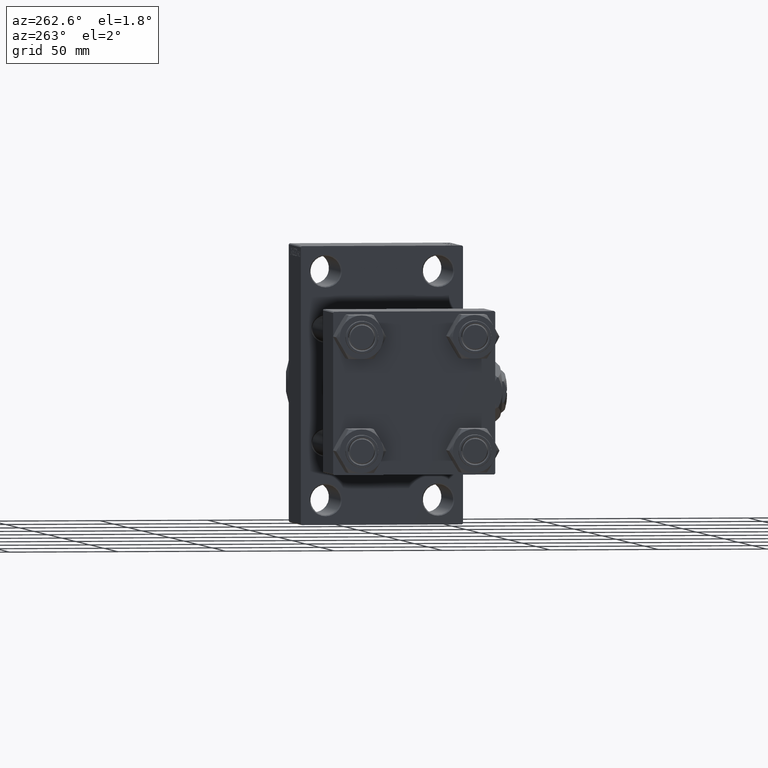
[diagram: clean part render]
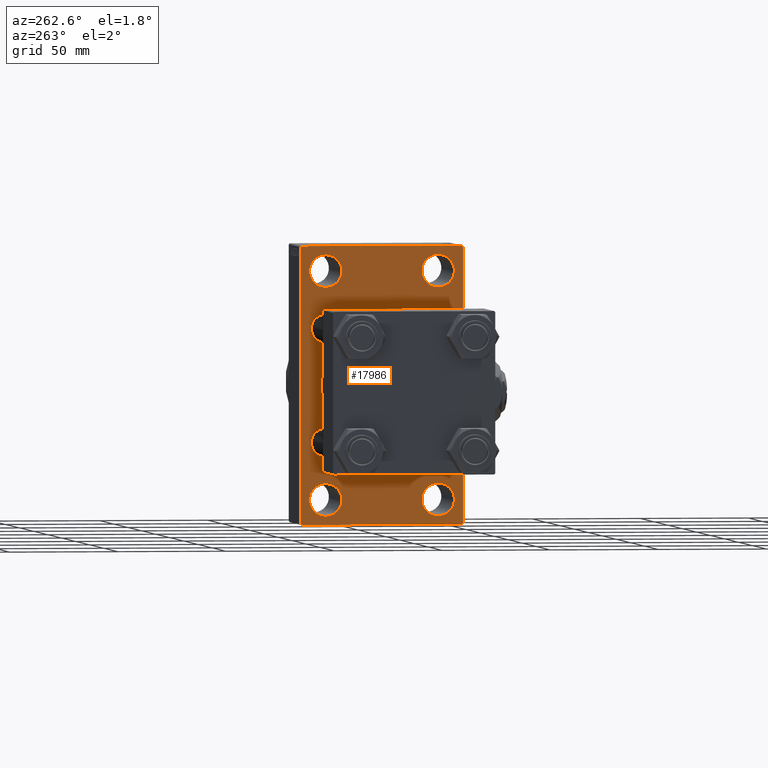
[diagram: same view with one face highlighted and labeled with its STEP entity id]
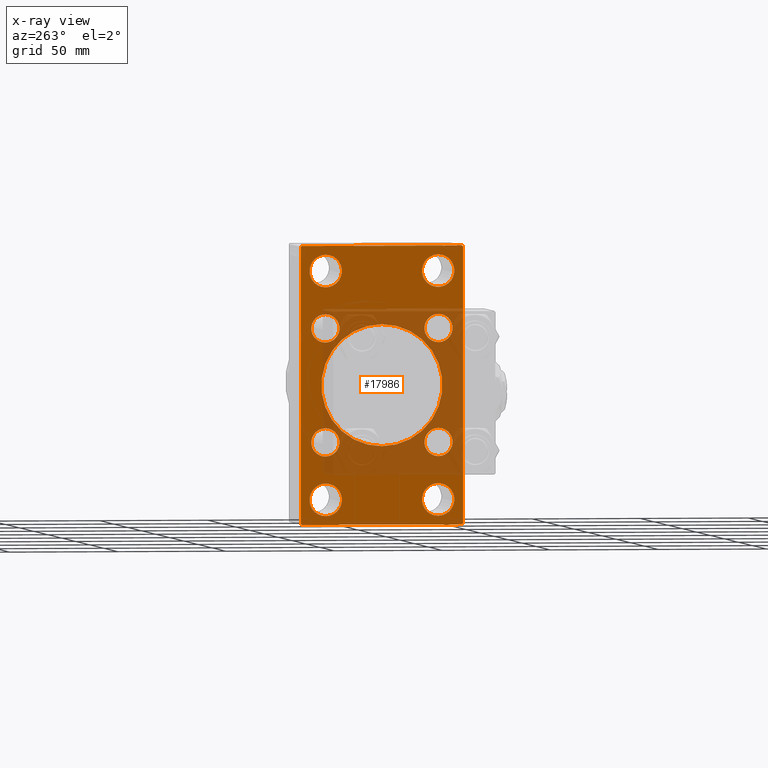
[diagram: x-ray of the same camera — body ghosted, the highlighted face saturated]
A machine part, auxiliary view. The second image highlights one B-rep face of the part: STEP entity #17986.
The next image is the same camera in x-ray: the body ghosted, the highlighted face saturated — about 35% of this face is hidden behind the body in this view.
In plain terms, the highlighted planar face has unit normal (-1, 0, 0).
Its self-contained STEP definition (entity closure, byte-faithful):
#180 = DIRECTION ( 'NONE',  ( -1.000000000000000000, 0.000000000000000000, -0.000000000000000000 ) ) ;
#187 = VERTEX_POINT ( 'NONE', #28447 ) ;
#403 = CARTESIAN_POINT ( 'NONE',  ( 114.9999999999999858, -25.99999999999999645, 45.00000000000002132 ) ) ;
#1037 = CARTESIAN_POINT ( 'NONE',  ( 114.9999999999999858, -25.99999999999999645, -52.49999999999999289 ) ) ;
#1162 = AXIS2_PLACEMENT_3D ( 'NONE', #24169, #27348, #28114 ) ;
#1648 = CIRCLE ( 'NONE', #28593, 28.00000000000000000 ) ;
#1666 = ORIENTED_EDGE ( 'NONE', *, *, #6667, .T. ) ;
#1837 = EDGE_CURVE ( 'NONE', #48486, #30447, #24759, .T. ) ;
#1896 = EDGE_LOOP ( 'NONE', ( #27244, #46014 ) ) ;
#1913 = CARTESIAN_POINT ( 'NONE',  ( 114.9999999999999858, 26.14999999999999858, -19.64999999999999503 ) ) ;
#2016 = AXIS2_PLACEMENT_3D ( 'NONE', #20655, #36711, #7482 ) ;
#2367 = CARTESIAN_POINT ( 'NONE',  ( 114.9999999999999858, 26.14999999999999858, -26.15000000000000213 ) ) ;
#2583 = CIRCLE ( 'NONE', #27852, 6.500000000000008882 ) ;
#3143 = DIRECTION ( 'NONE',  ( 1.000000000000000000, -0.000000000000000000, 0.000000000000000000 ) ) ;
#3400 = VERTEX_POINT ( 'NONE', #10303 ) ;
#3449 = DIRECTION ( 'NONE',  ( 0.000000000000000000, 0.000000000000000000, 1.000000000000000000 ) ) ;
#3491 = EDGE_CURVE ( 'NONE', #7828, #26828, #31116, .T. ) ;
#3513 = VECTOR ( 'NONE', #11861, 1000.000000000000000 ) ;
#3566 = EDGE_CURVE ( 'NONE', #51259, #46283, #51889, .T. ) ;
#4153 = FACE_BOUND ( 'NONE', #49413, .T. ) ;
#4502 = EDGE_CURVE ( 'NONE', #11430, #51189, #41220, .T. ) ;
#4610 = EDGE_CURVE ( 'NONE', #5822, #33616, #1648, .T. ) ;
#4664 = AXIS2_PLACEMENT_3D ( 'NONE', #44139, #25170, #44645 ) ;
#4677 = CIRCLE ( 'NONE', #50134, 6.500000000000008882 ) ;
#4890 = VERTEX_POINT ( 'NONE', #26745 ) ;
#5104 = CARTESIAN_POINT ( 'NONE',  ( 114.9999999999999858, 26.00000000000000000, -45.00000000000001421 ) ) ;
#5818 = VECTOR ( 'NONE', #51297, 1000.000000000000114 ) ;
#5822 = VERTEX_POINT ( 'NONE', #33606 ) ;
#6053 = DIRECTION ( 'NONE',  ( 0.000000000000000000, 0.000000000000000000, 1.000000000000000000 ) ) ;
#6217 = CARTESIAN_POINT ( 'NONE',  ( 114.9999999999999858, 26.14999999999999858, -32.65000000000001279 ) ) ;
#6394 = CIRCLE ( 'NONE', #40918, 7.499999999999978684 ) ;
#6531 = EDGE_CURVE ( 'NONE', #51189, #11430, #2583, .T. ) ;
#6564 = CIRCLE ( 'NONE', #15848, 28.00000000000000000 ) ;
#6589 = CARTESIAN_POINT ( 'NONE',  ( 114.9999999999999858, 37.50000000000000000, 63.99999999999998579 ) ) ;
#6667 = EDGE_CURVE ( 'NONE', #44512, #46283, #22947, .T. ) ;
#7068 = CARTESIAN_POINT ( 'NONE',  ( 114.9999999999999858, -26.14999999999999147, -32.65000000000001990 ) ) ;
#7288 = DIRECTION ( 'NONE',  ( 0.000000000000000000, 0.000000000000000000, 1.000000000000000000 ) ) ;
#7318 = DIRECTION ( 'NONE',  ( 1.000000000000000000, -0.000000000000000000, 0.000000000000000000 ) ) ;
#7482 = DIRECTION ( 'NONE',  ( 0.000000000000000000, 0.000000000000000000, 1.000000000000000000 ) ) ;
#7781 = VECTOR ( 'NONE', #38847, 1000.000000000000114 ) ;
#7828 = VERTEX_POINT ( 'NONE', #41494 ) ;
#7880 = CARTESIAN_POINT ( 'NONE',  ( 114.9999999999999858, 37.49999999999999289, -64.00000000000000000 ) ) ;
#7930 = AXIS2_PLACEMENT_3D ( 'NONE', #1037, #29537, #46110 ) ;
#8111 = AXIS2_PLACEMENT_3D ( 'NONE', #17752, #22750, #34068 ) ;
#8274 = EDGE_CURVE ( 'NONE', #23500, #45407, #41372, .T. ) ;
#9168 = EDGE_LOOP ( 'NONE', ( #24117, #45809 ) ) ;
#9191 = DIRECTION ( 'NONE',  ( 1.000000000000000000, -0.000000000000000000, 0.000000000000000000 ) ) ;
#9386 = EDGE_CURVE ( 'NONE', #187, #44512, #35055, .T. ) ;
#9457 = DIRECTION ( 'NONE',  ( 0.000000000000000000, 0.000000000000000000, 1.000000000000000000 ) ) ;
#9804 = AXIS2_PLACEMENT_3D ( 'NONE', #43384, #31550, #7288 ) ;
#9863 = AXIS2_PLACEMENT_3D ( 'NONE', #47932, #3143, #19267 ) ;
#10303 = CARTESIAN_POINT ( 'NONE',  ( 114.9999999999999858, 26.14999999999999858, 32.65000000000001990 ) ) ;
#10559 = CARTESIAN_POINT ( 'NONE',  ( 114.9999999999999858, 37.50000000000000000, 63.99999999999998579 ) ) ;
#10709 = VERTEX_POINT ( 'NONE', #43798 ) ;
#10876 = ORIENTED_EDGE ( 'NONE', *, *, #14504, .T. ) ;
#10916 = EDGE_CURVE ( 'NONE', #26828, #187, #45938, .T. ) ;
#11036 = DIRECTION ( 'NONE',  ( 0.000000000000000000, 0.000000000000000000, 1.000000000000000000 ) ) ;
#11430 = VERTEX_POINT ( 'NONE', #6217 ) ;
#11588 = FACE_BOUND ( 'NONE', #1896, .T. ) ;
#11801 = ORIENTED_EDGE ( 'NONE', *, *, #4502, .T. ) ;
#11861 = DIRECTION ( 'NONE',  ( 0.000000000000000000, -1.000000000000000000, -1.850371707708594563E-16 ) ) ;
#11926 = LINE ( 'NONE', #44789, #13015 ) ;
#12363 = CARTESIAN_POINT ( 'NONE',  ( 114.9999999999999858, -36.99999999999996447, -64.00000000000001421 ) ) ;
#12607 = DIRECTION ( 'NONE',  ( 0.000000000000000000, 0.000000000000000000, 1.000000000000000000 ) ) ;
#12921 = CARTESIAN_POINT ( 'NONE',  ( 114.9999999999999858, -2.602085213965210642E-15, 0.000000000000000000 ) ) ;
#13015 = VECTOR ( 'NONE', #32444, 999.9999999999998863 ) ;
#13060 = VERTEX_POINT ( 'NONE', #19884 ) ;
#13085 = DIRECTION ( 'NONE',  ( 0.000000000000000000, 0.000000000000000000, 1.000000000000000000 ) ) ;
#13249 = DIRECTION ( 'NONE',  ( 0.000000000000000000, 0.000000000000000000, 1.000000000000000000 ) ) ;
#13656 = VERTEX_POINT ( 'NONE', #17280 ) ;
#13805 = CARTESIAN_POINT ( 'NONE',  ( 114.9999999999999858, -37.49999999999999289, -63.49999999999997158 ) ) ;
#14040 = CARTESIAN_POINT ( 'NONE',  ( 114.9999999999999858, 26.00000000000000000, -52.49999999999999289 ) ) ;
#14113 = CIRCLE ( 'NONE', #40179, 7.499999999999978684 ) ;
#14237 = EDGE_CURVE ( 'NONE', #51259, #41578, #11926, .T. ) ;
#14362 = EDGE_CURVE ( 'NONE', #48256, #13060, #20585, .T. ) ;
#14384 = EDGE_CURVE ( 'NONE', #29876, #4890, #28990, .T. ) ;
#14472 = CARTESIAN_POINT ( 'NONE',  ( 114.9999999999999858, -2.602085213965210642E-15, 0.000000000000000000 ) ) ;
#14504 = EDGE_CURVE ( 'NONE', #3400, #33219, #25621, .T. ) ;
#15001 = DIRECTION ( 'NONE',  ( 1.000000000000000000, 0.000000000000000000, 0.000000000000000000 ) ) ;
#15333 = EDGE_LOOP ( 'NONE', ( #42044, #11801 ) ) ;
#15801 = FACE_OUTER_BOUND ( 'NONE', #38529, .T. ) ;
#15848 = AXIS2_PLACEMENT_3D ( 'NONE', #12921, #42163, #49522 ) ;
#16058 = PLANE ( 'NONE',  #24779 ) ;
#16088 = VECTOR ( 'NONE', #26898, 1000.000000000000000 ) ;
#16289 = ORIENTED_EDGE ( 'NONE', *, *, #14237, .T. ) ;
#16335 = EDGE_LOOP ( 'NONE', ( #51332, #27709 ) ) ;
#16535 = CIRCLE ( 'NONE', #9804, 7.499999999999978684 ) ;
#17280 = CARTESIAN_POINT ( 'NONE',  ( 114.9999999999999858, 26.00000000000000000, -59.99999999999997158 ) ) ;
#17297 = ORIENTED_EDGE ( 'NONE', *, *, #37022, .T. ) ;
#17752 = CARTESIAN_POINT ( 'NONE',  ( 114.9999999999999858, -26.14999999999999147, 26.15000000000000924 ) ) ;
#17986 = ADVANCED_FACE ( 'NONE', ( #11588, #44211, #51609, #4153, #19500, #40538, #31613, #36577, #43955, #15801 ), #16058, .T. ) ;
#18072 = AXIS2_PLACEMENT_3D ( 'NONE', #45310, #34983, #6053 ) ;
#18236 = EDGE_LOOP ( 'NONE', ( #10876, #17297 ) ) ;
#18953 = CIRCLE ( 'NONE', #48350, 7.499999999999978684 ) ;
#19267 = DIRECTION ( 'NONE',  ( 0.000000000000000000, 0.000000000000000000, 1.000000000000000000 ) ) ;
#19500 = FACE_BOUND ( 'NONE', #31138, .T. ) ;
#19671 = CARTESIAN_POINT ( 'NONE',  ( 114.9999999999999858, -25.99999999999999645, 59.99999999999997868 ) ) ;
#19733 = CARTESIAN_POINT ( 'NONE',  ( 114.9999999999999858, 26.14999999999999858, 19.64999999999999147 ) ) ;
#19884 = CARTESIAN_POINT ( 'NONE',  ( 114.9999999999999858, -26.14999999999999147, 32.65000000000001990 ) ) ;
#19910 = EDGE_CURVE ( 'NONE', #30447, #48486, #24897, .T. ) ;
#20585 = CIRCLE ( 'NONE', #18072, 6.500000000000008882 ) ;
#20655 = CARTESIAN_POINT ( 'NONE',  ( 114.9999999999999858, -26.14999999999999147, -26.15000000000000924 ) ) ;
#20769 = VECTOR ( 'NONE', #37436, 1000.000000000000000 ) ;
#20881 = ORIENTED_EDGE ( 'NONE', *, *, #19910, .T. ) ;
#20937 = CARTESIAN_POINT ( 'NONE',  ( 114.9999999999999858, 37.49999999999999289, -63.50000000000001421 ) ) ;
#21376 = LINE ( 'NONE', #10559, #20769 ) ;
#22166 = DIRECTION ( 'NONE',  ( 0.000000000000000000, 0.000000000000000000, 1.000000000000000000 ) ) ;
#22524 = EDGE_CURVE ( 'NONE', #13060, #48256, #30035, .T. ) ;
#22686 = DIRECTION ( 'NONE',  ( 1.000000000000000000, -0.000000000000000000, 0.000000000000000000 ) ) ;
#22689 = DIRECTION ( 'NONE',  ( 0.000000000000000000, -5.421010862427522170E-17, -1.000000000000000000 ) ) ;
#22750 = DIRECTION ( 'NONE',  ( 1.000000000000000000, -0.000000000000000000, 0.000000000000000000 ) ) ;
#22758 = CARTESIAN_POINT ( 'NONE',  ( 114.9999999999999858, 26.00000000000000000, 45.00000000000001421 ) ) ;
#22766 = EDGE_CURVE ( 'NONE', #10709, #41578, #21376, .T. ) ;
#22947 = LINE ( 'NONE', #23730, #16088 ) ;
#23500 = VERTEX_POINT ( 'NONE', #22758 ) ;
#23730 = CARTESIAN_POINT ( 'NONE',  ( 114.9999999999999858, -50.50000000000050449, -50.49999999999910472 ) ) ;
#23881 = EDGE_CURVE ( 'NONE', #4890, #29876, #51930, .T. ) ;
#24115 = ORIENTED_EDGE ( 'NONE', *, *, #22524, .T. ) ;
#24117 = ORIENTED_EDGE ( 'NONE', *, *, #14384, .T. ) ;
#24169 = CARTESIAN_POINT ( 'NONE',  ( 114.9999999999999858, 26.14999999999999858, 26.15000000000000213 ) ) ;
#24343 = EDGE_CURVE ( 'NONE', #45892, #36088, #14113, .T. ) ;
#24571 = AXIS2_PLACEMENT_3D ( 'NONE', #36139, #39581, #3449 ) ;
#24686 = CARTESIAN_POINT ( 'NONE',  ( 114.9999999999999858, -25.99999999999999645, 52.50000000000000000 ) ) ;
#24759 = CIRCLE ( 'NONE', #2016, 6.500000000000008882 ) ;
#24779 = AXIS2_PLACEMENT_3D ( 'NONE', #36325, #180, #28420 ) ;
#24897 = CIRCLE ( 'NONE', #4664, 6.500000000000008882 ) ;
#24933 = ORIENTED_EDGE ( 'NONE', *, *, #37860, .T. ) ;
#25118 = EDGE_CURVE ( 'NONE', #33616, #5822, #6564, .T. ) ;
#25170 = DIRECTION ( 'NONE',  ( 1.000000000000000000, -0.000000000000000000, 0.000000000000000000 ) ) ;
#25396 = ORIENTED_EDGE ( 'NONE', *, *, #14362, .T. ) ;
#25621 = CIRCLE ( 'NONE', #1162, 6.500000000000008882 ) ;
#25951 = CARTESIAN_POINT ( 'NONE',  ( 114.9999999999999858, 50.50000000000053291, -50.49999999999912603 ) ) ;
#26745 = CARTESIAN_POINT ( 'NONE',  ( 114.9999999999999858, -25.99999999999999645, -59.99999999999997158 ) ) ;
#26828 = VERTEX_POINT ( 'NONE', #20937 ) ;
#26898 = DIRECTION ( 'NONE',  ( 0.000000000000000000, -0.7071067811865378028, 0.7071067811865573427 ) ) ;
#27244 = ORIENTED_EDGE ( 'NONE', *, *, #37139, .T. ) ;
#27348 = DIRECTION ( 'NONE',  ( 1.000000000000000000, -0.000000000000000000, 0.000000000000000000 ) ) ;
#27709 = ORIENTED_EDGE ( 'NONE', *, *, #25118, .T. ) ;
#27852 = AXIS2_PLACEMENT_3D ( 'NONE', #2367, #22686, #22166 ) ;
#28114 = DIRECTION ( 'NONE',  ( 0.000000000000000000, 0.000000000000000000, 1.000000000000000000 ) ) ;
#28164 = CARTESIAN_POINT ( 'NONE',  ( 114.9999999999999858, 26.14999999999999858, 26.15000000000000213 ) ) ;
#28177 = DIRECTION ( 'NONE',  ( 1.000000000000000000, -0.000000000000000000, 0.000000000000000000 ) ) ;
#28312 = ORIENTED_EDGE ( 'NONE', *, *, #3566, .F. ) ;
#28420 = DIRECTION ( 'NONE',  ( -0.000000000000000000, 0.000000000000000000, 1.000000000000000000 ) ) ;
#28447 = CARTESIAN_POINT ( 'NONE',  ( 114.9999999999999858, 37.00000000000002132, -64.00000000000000000 ) ) ;
#28593 = AXIS2_PLACEMENT_3D ( 'NONE', #14472, #15001, #42638 ) ;
#28900 = CARTESIAN_POINT ( 'NONE',  ( 114.9999999999999858, -36.99999999999998579, 63.99999999999997158 ) ) ;
#28990 = CIRCLE ( 'NONE', #7930, 7.499999999999978684 ) ;
#29537 = DIRECTION ( 'NONE',  ( 1.000000000000000000, -0.000000000000000000, 0.000000000000000000 ) ) ;
#29876 = VERTEX_POINT ( 'NONE', #36444 ) ;
#30035 = CIRCLE ( 'NONE', #8111, 6.500000000000008882 ) ;
#30447 = VERTEX_POINT ( 'NONE', #7068 ) ;
#30770 = LINE ( 'NONE', #39190, #5818 ) ;
#30858 = EDGE_LOOP ( 'NONE', ( #32440, #20881 ) ) ;
#31116 = LINE ( 'NONE', #6589, #35301 ) ;
#31138 = EDGE_LOOP ( 'NONE', ( #24115, #25396 ) ) ;
#31550 = DIRECTION ( 'NONE',  ( 1.000000000000000000, -0.000000000000000000, 0.000000000000000000 ) ) ;
#31613 = FACE_BOUND ( 'NONE', #15333, .T. ) ;
#32364 = DIRECTION ( 'NONE',  ( 1.000000000000000000, -0.000000000000000000, 0.000000000000000000 ) ) ;
#32440 = ORIENTED_EDGE ( 'NONE', *, *, #1837, .T. ) ;
#32444 = DIRECTION ( 'NONE',  ( -0.000000000000000000, 0.7071067811865525687, 0.7071067811865425767 ) ) ;
#33219 = VERTEX_POINT ( 'NONE', #19733 ) ;
#33606 = CARTESIAN_POINT ( 'NONE',  ( 114.9999999999999858, -2.602085213965210642E-15, 28.00000000000000000 ) ) ;
#33616 = VERTEX_POINT ( 'NONE', #35216 ) ;
#33683 = VERTEX_POINT ( 'NONE', #5104 ) ;
#33958 = CARTESIAN_POINT ( 'NONE',  ( 114.9999999999999858, 26.14999999999999858, -26.15000000000000213 ) ) ;
#34068 = DIRECTION ( 'NONE',  ( 0.000000000000000000, 0.000000000000000000, 1.000000000000000000 ) ) ;
#34936 = EDGE_CURVE ( 'NONE', #13656, #33683, #18953, .T. ) ;
#34983 = DIRECTION ( 'NONE',  ( 1.000000000000000000, -0.000000000000000000, 0.000000000000000000 ) ) ;
#35055 = LINE ( 'NONE', #7880, #3513 ) ;
#35136 = CARTESIAN_POINT ( 'NONE',  ( 114.9999999999999858, -37.49999999999999289, 63.49999999999997158 ) ) ;
#35216 = CARTESIAN_POINT ( 'NONE',  ( 114.9999999999999858, 8.269258236473784371E-16, -28.00000000000000000 ) ) ;
#35301 = VECTOR ( 'NONE', #22689, 1000.000000000000000 ) ;
#35354 = ORIENTED_EDGE ( 'NONE', *, *, #9386, .T. ) ;
#36030 = DIRECTION ( 'NONE',  ( 1.000000000000000000, -0.000000000000000000, 0.000000000000000000 ) ) ;
#36088 = VERTEX_POINT ( 'NONE', #19671 ) ;
#36139 = CARTESIAN_POINT ( 'NONE',  ( 114.9999999999999858, 26.00000000000000000, 52.49999999999999289 ) ) ;
#36325 = CARTESIAN_POINT ( 'NONE',  ( 114.9999999999999858, 0.000000000000000000, 0.000000000000000000 ) ) ;
#36444 = CARTESIAN_POINT ( 'NONE',  ( 114.9999999999999858, -25.99999999999999645, -45.00000000000001421 ) ) ;
#36577 = FACE_BOUND ( 'NONE', #30858, .T. ) ;
#36711 = DIRECTION ( 'NONE',  ( 1.000000000000000000, -0.000000000000000000, 0.000000000000000000 ) ) ;
#37022 = EDGE_CURVE ( 'NONE', #33219, #3400, #4677, .T. ) ;
#37139 = EDGE_CURVE ( 'NONE', #36088, #45892, #16535, .T. ) ;
#37436 = DIRECTION ( 'NONE',  ( 0.000000000000000000, -1.000000000000000000, -1.850371707708594563E-16 ) ) ;
#37615 = CIRCLE ( 'NONE', #49363, 7.499999999999978684 ) ;
#37860 = EDGE_CURVE ( 'NONE', #45407, #23500, #6394, .T. ) ;
#38529 = EDGE_LOOP ( 'NONE', ( #35354, #1666, #28312, #16289, #44904, #46523, #50981, #40575 ) ) ;
#38730 = CARTESIAN_POINT ( 'NONE',  ( 114.9999999999999858, -26.14999999999999147, 19.65000000000000213 ) ) ;
#38847 = DIRECTION ( 'NONE',  ( -0.000000000000000000, -0.7071067811865376918, -0.7071067811865573427 ) ) ;
#39190 = CARTESIAN_POINT ( 'NONE',  ( 114.9999999999999858, 50.49999999999998579, 50.49999999999998579 ) ) ;
#39533 = DIRECTION ( 'NONE',  ( 0.000000000000000000, 0.000000000000000000, -1.000000000000000000 ) ) ;
#39534 = CARTESIAN_POINT ( 'NONE',  ( 114.9999999999999858, 26.00000000000000000, 59.99999999999997158 ) ) ;
#39581 = DIRECTION ( 'NONE',  ( 1.000000000000000000, -0.000000000000000000, 0.000000000000000000 ) ) ;
#39623 = EDGE_CURVE ( 'NONE', #33683, #13656, #37615, .T. ) ;
#40179 = AXIS2_PLACEMENT_3D ( 'NONE', #24686, #36030, #13085 ) ;
#40538 = FACE_BOUND ( 'NONE', #18236, .T. ) ;
#40575 = ORIENTED_EDGE ( 'NONE', *, *, #10916, .T. ) ;
#40918 = AXIS2_PLACEMENT_3D ( 'NONE', #51371, #28177, #51109 ) ;
#41220 = CIRCLE ( 'NONE', #51320, 6.500000000000008882 ) ;
#41372 = CIRCLE ( 'NONE', #24571, 7.499999999999978684 ) ;
#41494 = CARTESIAN_POINT ( 'NONE',  ( 114.9999999999999858, 37.50000000000000000, 63.49999999999998579 ) ) ;
#41558 = CARTESIAN_POINT ( 'NONE',  ( 114.9999999999999858, -26.14999999999999147, -19.65000000000000213 ) ) ;
#41578 = VERTEX_POINT ( 'NONE', #28900 ) ;
#42044 = ORIENTED_EDGE ( 'NONE', *, *, #6531, .T. ) ;
#42163 = DIRECTION ( 'NONE',  ( 1.000000000000000000, 0.000000000000000000, 0.000000000000000000 ) ) ;
#42638 = DIRECTION ( 'NONE',  ( 0.000000000000000000, 0.000000000000000000, -1.000000000000000000 ) ) ;
#43384 = CARTESIAN_POINT ( 'NONE',  ( 114.9999999999999858, -25.99999999999999645, 52.50000000000000000 ) ) ;
#43798 = CARTESIAN_POINT ( 'NONE',  ( 114.9999999999999858, 37.00000000000000000, 63.99999999999998579 ) ) ;
#43955 = FACE_BOUND ( 'NONE', #16335, .T. ) ;
#44139 = CARTESIAN_POINT ( 'NONE',  ( 114.9999999999999858, -26.14999999999999147, -26.15000000000000924 ) ) ;
#44189 = EDGE_CURVE ( 'NONE', #10709, #7828, #30770, .T. ) ;
#44211 = FACE_BOUND ( 'NONE', #9168, .T. ) ;
#44483 = CARTESIAN_POINT ( 'NONE',  ( 114.9999999999999858, -37.49999999999999289, 63.99999999999997158 ) ) ;
#44512 = VERTEX_POINT ( 'NONE', #12363 ) ;
#44645 = DIRECTION ( 'NONE',  ( 0.000000000000000000, 0.000000000000000000, 1.000000000000000000 ) ) ;
#44789 = CARTESIAN_POINT ( 'NONE',  ( 114.9999999999999858, -50.49999999999972289, 50.50000000000042633 ) ) ;
#44808 = EDGE_LOOP ( 'NONE', ( #49401, #48556 ) ) ;
#44904 = ORIENTED_EDGE ( 'NONE', *, *, #22766, .F. ) ;
#45310 = CARTESIAN_POINT ( 'NONE',  ( 114.9999999999999858, -26.14999999999999147, 26.15000000000000924 ) ) ;
#45407 = VERTEX_POINT ( 'NONE', #39534 ) ;
#45809 = ORIENTED_EDGE ( 'NONE', *, *, #23881, .T. ) ;
#45892 = VERTEX_POINT ( 'NONE', #403 ) ;
#45938 = LINE ( 'NONE', #25951, #7781 ) ;
#46014 = ORIENTED_EDGE ( 'NONE', *, *, #24343, .T. ) ;
#46110 = DIRECTION ( 'NONE',  ( 0.000000000000000000, 0.000000000000000000, 1.000000000000000000 ) ) ;
#46154 = DIRECTION ( 'NONE',  ( 1.000000000000000000, -0.000000000000000000, 0.000000000000000000 ) ) ;
#46255 = ORIENTED_EDGE ( 'NONE', *, *, #8274, .T. ) ;
#46283 = VERTEX_POINT ( 'NONE', #13805 ) ;
#46523 = ORIENTED_EDGE ( 'NONE', *, *, #44189, .T. ) ;
#47107 = CARTESIAN_POINT ( 'NONE',  ( 114.9999999999999858, 26.00000000000000000, -52.49999999999999289 ) ) ;
#47911 = VECTOR ( 'NONE', #39533, 1000.000000000000000 ) ;
#47932 = CARTESIAN_POINT ( 'NONE',  ( 114.9999999999999858, -25.99999999999999645, -52.49999999999999289 ) ) ;
#48256 = VERTEX_POINT ( 'NONE', #38730 ) ;
#48350 = AXIS2_PLACEMENT_3D ( 'NONE', #14040, #46154, #13249 ) ;
#48486 = VERTEX_POINT ( 'NONE', #41558 ) ;
#48556 = ORIENTED_EDGE ( 'NONE', *, *, #34936, .T. ) ;
#49363 = AXIS2_PLACEMENT_3D ( 'NONE', #47107, #7318, #11036 ) ;
#49401 = ORIENTED_EDGE ( 'NONE', *, *, #39623, .T. ) ;
#49413 = EDGE_LOOP ( 'NONE', ( #24933, #46255 ) ) ;
#49522 = DIRECTION ( 'NONE',  ( 0.000000000000000000, 0.000000000000000000, -1.000000000000000000 ) ) ;
#50134 = AXIS2_PLACEMENT_3D ( 'NONE', #28164, #32364, #12607 ) ;
#50981 = ORIENTED_EDGE ( 'NONE', *, *, #3491, .T. ) ;
#51109 = DIRECTION ( 'NONE',  ( 0.000000000000000000, 0.000000000000000000, 1.000000000000000000 ) ) ;
#51189 = VERTEX_POINT ( 'NONE', #1913 ) ;
#51259 = VERTEX_POINT ( 'NONE', #35136 ) ;
#51297 = DIRECTION ( 'NONE',  ( 0.000000000000000000, 0.7071067811865474617, -0.7071067811865474617 ) ) ;
#51320 = AXIS2_PLACEMENT_3D ( 'NONE', #33958, #9191, #9457 ) ;
#51332 = ORIENTED_EDGE ( 'NONE', *, *, #4610, .T. ) ;
#51371 = CARTESIAN_POINT ( 'NONE',  ( 114.9999999999999858, 26.00000000000000000, 52.49999999999999289 ) ) ;
#51609 = FACE_BOUND ( 'NONE', #44808, .T. ) ;
#51889 = LINE ( 'NONE', #44483, #47911 ) ;
#51930 = CIRCLE ( 'NONE', #9863, 7.499999999999978684 ) ;